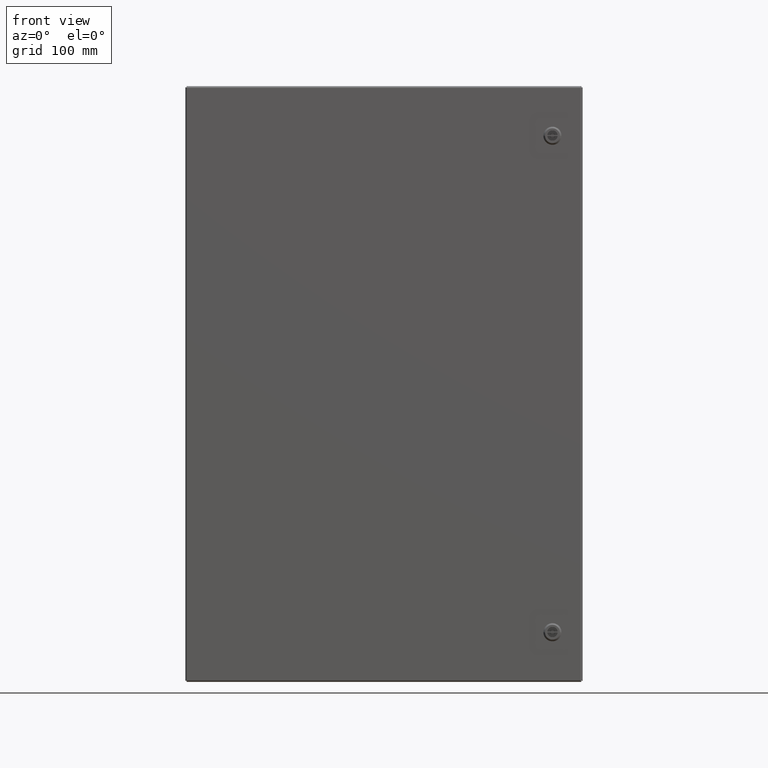
[diagram: clean part render]
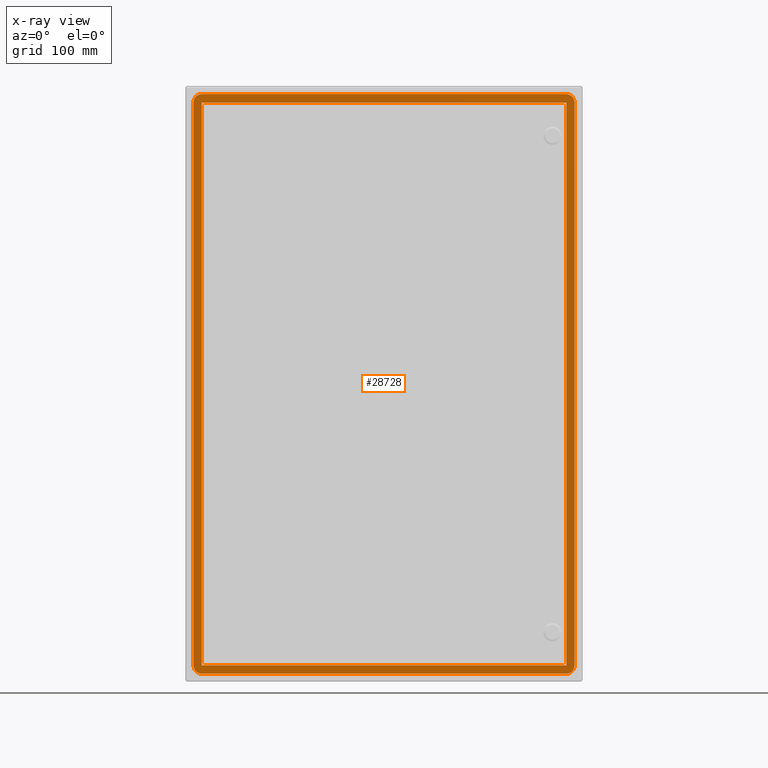
[diagram: x-ray — body ghosted, one internal face saturated and labeled with its STEP entity id]
A machine part, front view, then the same camera in x-ray: the body is ghosted and one INTERNAL B-rep face — a face not visible from any outside direction — is saturated and labeled: STEP entity #28728.
In plain terms, the highlighted planar face has unit normal (-0, -1, 0).
Its self-contained STEP definition (entity closure, byte-faithful):
#34 = EDGE_CURVE ( 'NONE', #4913, #15638, #3233, .T. ) ;
#304 = AXIS2_PLACEMENT_3D ( 'NONE', #18169, #5812, #27610 ) ;
#532 = AXIS2_PLACEMENT_3D ( 'NONE', #17031, #16719, #23847 ) ;
#595 = LINE ( 'NONE', #14660, #26711 ) ;
#602 = DIRECTION ( 'NONE',  ( -3.397703270508142765E-31, -9.992007221626408864E-16, -1.000000000000000000 ) ) ;
#641 = DIRECTION ( 'NONE',  ( -7.347880794884109875E-16, -1.000000000000000000, 9.992007221626410836E-16 ) ) ;
#797 = EDGE_CURVE ( 'NONE', #6238, #13978, #6255, .T. ) ;
#910 = DIRECTION ( 'NONE',  ( -3.397703270508142765E-31, -9.992007221626408864E-16, -1.000000000000000000 ) ) ;
#930 = EDGE_CURVE ( 'NONE', #15638, #17838, #15313, .T. ) ;
#1042 = ORIENTED_EDGE ( 'NONE', *, *, #3541, .T. ) ;
#2151 = DIRECTION ( 'NONE',  ( -1.000000000000000000, 5.510910596163079695E-16, -2.108802576951756499E-31 ) ) ;
#2329 = EDGE_CURVE ( 'NONE', #28991, #6238, #25737, .T. ) ;
#3110 = EDGE_CURVE ( 'NONE', #13978, #8891, #5748, .T. ) ;
#3233 = LINE ( 'NONE', #24291, #17023 ) ;
#3254 = VECTOR ( 'NONE', #25270, 39.37007874015748143 ) ;
#3541 = EDGE_CURVE ( 'NONE', #8891, #14265, #21797, .T. ) ;
#3952 = AXIS2_PLACEMENT_3D ( 'NONE', #25473, #4265, #28089 ) ;
#4017 = PLANE ( 'NONE',  #8805 ) ;
#4259 = CARTESIAN_POINT ( 'NONE',  ( 11.01100000000003831, -8.765000000000023661, -17.01100000000001700 ) ) ;
#4265 = DIRECTION ( 'NONE',  ( -7.347880794884109875E-16, -1.000000000000000000, 9.992007221626410836E-16 ) ) ;
#4486 = CARTESIAN_POINT ( 'NONE',  ( -11.01100000000002588, -8.765000000000011227, -17.01100000000001344 ) ) ;
#4578 = EDGE_CURVE ( 'NONE', #24105, #28991, #20470, .T. ) ;
#4913 = VERTEX_POINT ( 'NONE', #20245 ) ;
#5398 = CARTESIAN_POINT ( 'NONE',  ( -11.01099999999996193, -8.764999999999977476, 17.51100000000000279 ) ) ;
#5572 = VERTEX_POINT ( 'NONE', #14605 ) ;
#5748 = CIRCLE ( 'NONE', #304, 0.5000000000000126565 ) ;
#5797 = DIRECTION ( 'NONE',  ( 1.000000000000000000, -5.510910596163079695E-16, 2.108802576951756499E-31 ) ) ;
#5812 = DIRECTION ( 'NONE',  ( -7.347880794884109875E-16, -1.000000000000000000, 9.992007221626410836E-16 ) ) ;
#6238 = VERTEX_POINT ( 'NONE', #27675 ) ;
#6255 = LINE ( 'NONE', #8135, #26369 ) ;
#7741 = CARTESIAN_POINT ( 'NONE',  ( 11.01099999999999923, -8.765000000000023661, -17.01099999999999923 ) ) ;
#7908 = ORIENTED_EDGE ( 'NONE', *, *, #16547, .T. ) ;
#8135 = CARTESIAN_POINT ( 'NONE',  ( 11.51100000000004009, -8.764999999999989910, 17.51099999999999923 ) ) ;
#8213 = DIRECTION ( 'NONE',  ( 3.397703270508142765E-31, 9.992007221626408864E-16, 1.000000000000000000 ) ) ;
#8642 = ORIENTED_EDGE ( 'NONE', *, *, #4578, .T. ) ;
#8805 = AXIS2_PLACEMENT_3D ( 'NONE', #26928, #24915, #2151 ) ;
#8891 = VERTEX_POINT ( 'NONE', #13159 ) ;
#9174 = ORIENTED_EDGE ( 'NONE', *, *, #3110, .T. ) ;
#10215 = CARTESIAN_POINT ( 'NONE',  ( -11.01100000000003831, -8.765000000000011227, -17.01099999999999923 ) ) ;
#10253 = EDGE_CURVE ( 'NONE', #14265, #27447, #11379, .T. ) ;
#10896 = LINE ( 'NONE', #10215, #25670 ) ;
#11248 = CIRCLE ( 'NONE', #30505, 0.5000000000000126565 ) ;
#11379 = CIRCLE ( 'NONE', #3952, 0.5000000000000126565 ) ;
#12768 = CARTESIAN_POINT ( 'NONE',  ( -11.51100000000001522, -8.765000000000011227, -17.01099999999999923 ) ) ;
#12904 = LINE ( 'NONE', #29327, #21798 ) ;
#12946 = ORIENTED_EDGE ( 'NONE', *, *, #797, .T. ) ;
#12966 = CARTESIAN_POINT ( 'NONE',  ( -11.51100000000000101, -8.765000000000011227, -17.01099999999999923 ) ) ;
#13035 = CARTESIAN_POINT ( 'NONE',  ( 11.51100000000004009, -8.765000000000023661, -17.01099999999999923 ) ) ;
#13159 = CARTESIAN_POINT ( 'NONE',  ( -11.51099999999999390, -8.764999999999977476, 17.01099999999999923 ) ) ;
#13572 = CARTESIAN_POINT ( 'NONE',  ( 11.51100000000005075, -8.764999999999989910, 17.01099999999996015 ) ) ;
#13978 = VERTEX_POINT ( 'NONE', #5398 ) ;
#14265 = VERTEX_POINT ( 'NONE', #12768 ) ;
#14605 = CARTESIAN_POINT ( 'NONE',  ( 11.01099999999999923, -8.765000000000025437, -17.51100000000000634 ) ) ;
#14660 = CARTESIAN_POINT ( 'NONE',  ( 11.51100000000004009, -8.764999999999989910, 17.01099999999999923 ) ) ;
#15313 = LINE ( 'NONE', #24759, #20865 ) ;
#15638 = VERTEX_POINT ( 'NONE', #4259 ) ;
#15726 = ORIENTED_EDGE ( 'NONE', *, *, #19004, .T. ) ;
#16547 = EDGE_CURVE ( 'NONE', #5572, #24105, #11248, .T. ) ;
#16719 = DIRECTION ( 'NONE',  ( -7.347880794884109875E-16, -1.000000000000000000, 9.992007221626410836E-16 ) ) ;
#17023 = VECTOR ( 'NONE', #910, 39.37007874015748143 ) ;
#17031 = CARTESIAN_POINT ( 'NONE',  ( 11.01100000000004009, -8.764999999999989910, 17.01099999999999923 ) ) ;
#17180 = DIRECTION ( 'NONE',  ( -1.000000000000000000, 0.0000000000000000000, 0.0000000000000000000 ) ) ;
#17838 = VERTEX_POINT ( 'NONE', #4486 ) ;
#18007 = ORIENTED_EDGE ( 'NONE', *, *, #2329, .T. ) ;
#18169 = CARTESIAN_POINT ( 'NONE',  ( -11.01099999999996193, -8.764999999999977476, 17.01099999999999923 ) ) ;
#18225 = CARTESIAN_POINT ( 'NONE',  ( 11.51100000000003298, -8.765000000000023661, -17.01099999999999923 ) ) ;
#18705 = EDGE_LOOP ( 'NONE', ( #19344, #15726, #26902, #28479 ) ) ;
#19004 = EDGE_CURVE ( 'NONE', #17838, #27099, #10896, .T. ) ;
#19344 = ORIENTED_EDGE ( 'NONE', *, *, #930, .T. ) ;
#19733 = EDGE_CURVE ( 'NONE', #27099, #4913, #595, .T. ) ;
#19802 = DIRECTION ( 'NONE',  ( -1.000000000000000000, 5.510910596163079695E-16, -2.108802576951756499E-31 ) ) ;
#20245 = CARTESIAN_POINT ( 'NONE',  ( 11.01100000000005963, -8.764999999999989910, 17.01099999999997792 ) ) ;
#20470 = LINE ( 'NONE', #13035, #3254 ) ;
#20865 = VECTOR ( 'NONE', #19802, 39.37007874015748143 ) ;
#21797 = LINE ( 'NONE', #12966, #21986 ) ;
#21798 = VECTOR ( 'NONE', #5797, 39.37007874015748143 ) ;
#21986 = VECTOR ( 'NONE', #602, 39.37007874015748143 ) ;
#22396 = ORIENTED_EDGE ( 'NONE', *, *, #29552, .T. ) ;
#22757 = EDGE_LOOP ( 'NONE', ( #22396, #7908, #8642, #18007, #12946, #9174, #1042, #27514 ) ) ;
#23847 = DIRECTION ( 'NONE',  ( -1.000000000000000000, 0.0000000000000000000, 0.0000000000000000000 ) ) ;
#24096 = DIRECTION ( 'NONE',  ( 1.000000000000000000, -5.510910596163079695E-16, 2.108802576951756499E-31 ) ) ;
#24105 = VERTEX_POINT ( 'NONE', #18225 ) ;
#24291 = CARTESIAN_POINT ( 'NONE',  ( 11.01100000000007739, -8.765000000000023661, -17.01099999999999923 ) ) ;
#24592 = FACE_BOUND ( 'NONE', #18705, .T. ) ;
#24759 = CARTESIAN_POINT ( 'NONE',  ( 11.51100000000004009, -8.765000000000023661, -17.01100000000003831 ) ) ;
#24915 = DIRECTION ( 'NONE',  ( -5.510910596163079695E-16, -1.000000000000000000, 9.992007221626408864E-16 ) ) ;
#25127 = DIRECTION ( 'NONE',  ( -1.000000000000000000, 5.510910596163079695E-16, -2.108802576951756499E-31 ) ) ;
#25222 = FACE_OUTER_BOUND ( 'NONE', #22757, .T. ) ;
#25270 = DIRECTION ( 'NONE',  ( 3.397703270508142765E-31, 9.992007221626408864E-16, 1.000000000000000000 ) ) ;
#25473 = CARTESIAN_POINT ( 'NONE',  ( -11.01099999999999923, -8.765000000000011227, -17.01099999999999923 ) ) ;
#25670 = VECTOR ( 'NONE', #8213, 39.37007874015748143 ) ;
#25737 = CIRCLE ( 'NONE', #532, 0.5000000000000126565 ) ;
#26360 = CARTESIAN_POINT ( 'NONE',  ( -11.01099999999999923, -8.765000000000011227, -17.51100000000000279 ) ) ;
#26369 = VECTOR ( 'NONE', #25127, 39.37007874015748143 ) ;
#26711 = VECTOR ( 'NONE', #24096, 39.37007874015748143 ) ;
#26902 = ORIENTED_EDGE ( 'NONE', *, *, #19733, .T. ) ;
#26928 = CARTESIAN_POINT ( 'NONE',  ( 11.51100000000004009, -8.765000000000023661, -17.01099999999999923 ) ) ;
#27099 = VERTEX_POINT ( 'NONE', #27773 ) ;
#27447 = VERTEX_POINT ( 'NONE', #26360 ) ;
#27514 = ORIENTED_EDGE ( 'NONE', *, *, #10253, .T. ) ;
#27610 = DIRECTION ( 'NONE',  ( -1.000000000000000000, 0.0000000000000000000, 0.0000000000000000000 ) ) ;
#27675 = CARTESIAN_POINT ( 'NONE',  ( 11.01100000000004009, -8.764999999999989910, 17.51100000000000279 ) ) ;
#27773 = CARTESIAN_POINT ( 'NONE',  ( -11.01099999999999390, -8.764999999999977476, 17.01099999999999923 ) ) ;
#28089 = DIRECTION ( 'NONE',  ( -1.000000000000000000, 0.0000000000000000000, 0.0000000000000000000 ) ) ;
#28479 = ORIENTED_EDGE ( 'NONE', *, *, #34, .T. ) ;
#28728 = ADVANCED_FACE ( 'NONE', ( #24592, #25222 ), #4017, .T. ) ;
#28991 = VERTEX_POINT ( 'NONE', #13572 ) ;
#29327 = CARTESIAN_POINT ( 'NONE',  ( 11.51100000000004009, -8.765000000000025437, -17.51099999999999923 ) ) ;
#29552 = EDGE_CURVE ( 'NONE', #27447, #5572, #12904, .T. ) ;
#30505 = AXIS2_PLACEMENT_3D ( 'NONE', #7741, #641, #17180 ) ;